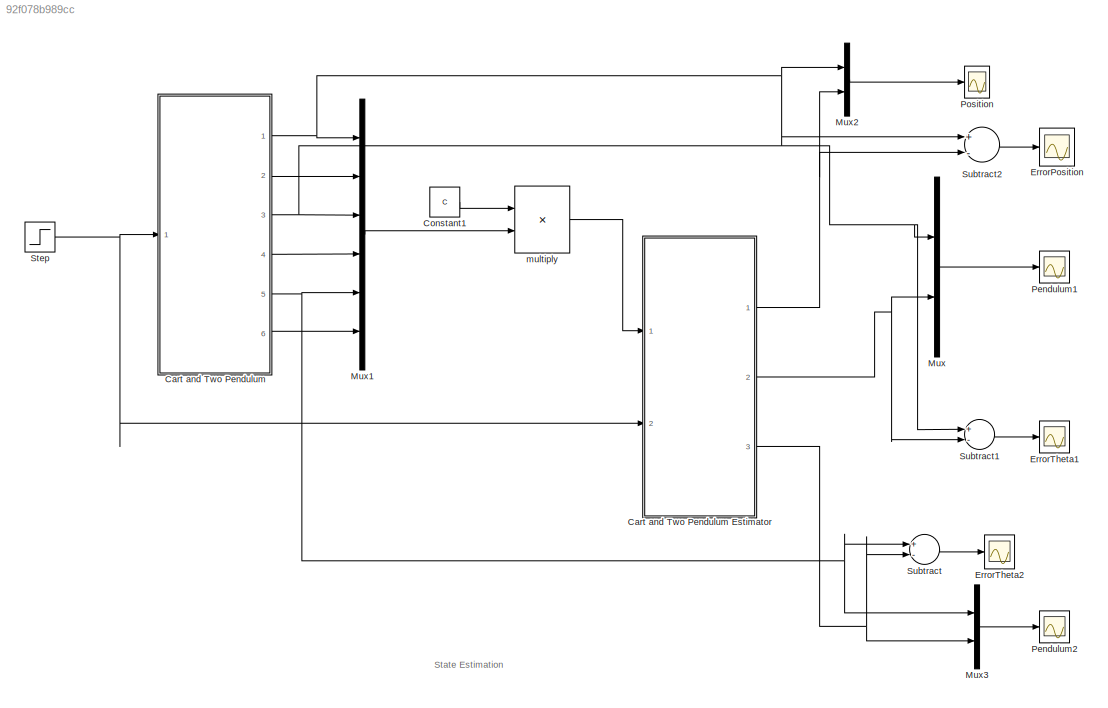
MODEL slx_92f078b989cc
KIND model
CONFIG AbsTol = auto
CONFIG EnableMultiTasking = on
CONFIG FixedStep = auto
CONFIG MaxStep = auto
CONFIG MinStep = auto
CONFIG RelTol = 1e-3
CONFIG SampleTimeConstraint = Unconstrained
CONFIG Solver = VariableStepAuto
CONFIG SolverName = VariableStepAuto
CONFIG StartTime = 0.0
CONFIG StopTime = 20
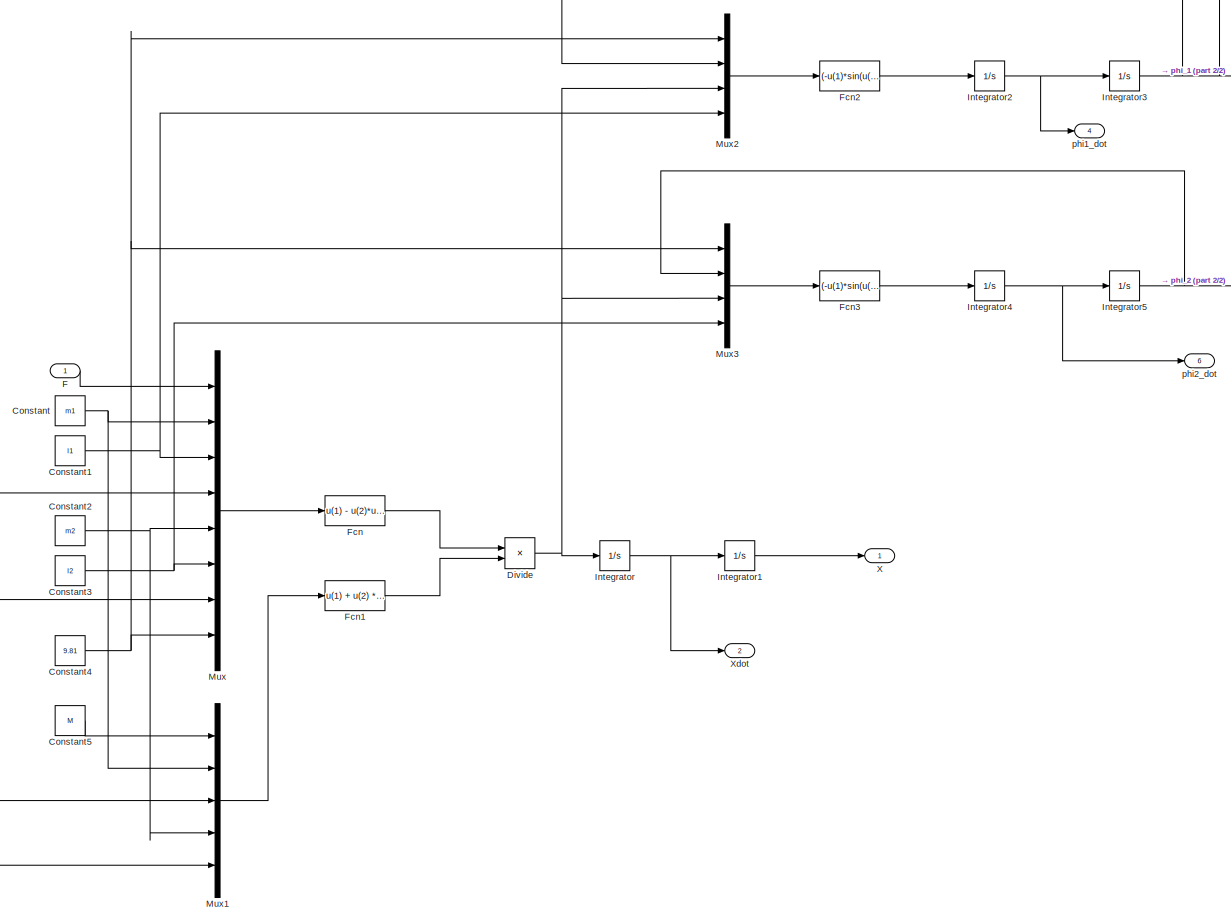
[diagram: Cart and Two Pendulum  - part 1/2, most of the canvas]
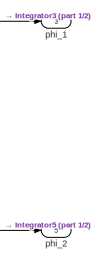
[diagram: Cart and Two Pendulum  - part 2/2, top right region]
BLOCK [SubSystem] Cart and Two Pendulum 
  Ports = [1, 6]
  RequestExecContextInheritance = off
  Variant = off
BLOCK [Constant] Cart and Two Pendulum /Constant
  Value = m1
BLOCK [Constant] Cart and Two Pendulum /Constant1
  Value = l1
BLOCK [Constant] Cart and Two Pendulum /Constant2
  Value = m2
BLOCK [Constant] Cart and Two Pendulum /Constant3
  Value = l2
BLOCK [Constant] Cart and Two Pendulum /Constant4
  Value = 9.81
BLOCK [Constant] Cart and Two Pendulum /Constant5
  Value = M
BLOCK [Product] Cart and Two Pendulum /Divide
  InputSameDT = off
  Inputs = */
  OutDataTypeStr = Inherit: Inherit via internal rule
  Ports = [2, 1]
  RndMeth = Floor
  SaturateOnIntegerOverflow = off
BLOCK [Inport] Cart and Two Pendulum /F
  IconDisplay = Port number
BLOCK [Fcn] Cart and Two Pendulum /Fcn
  Expr = u(1) - u(2)*u(3)*(u(4)^2)*sin(u(4)) - u(5) * u(6) * (u(7)^2)*sin(u(7))-u(2)*u(8)*sin(u(4))*cos(u(4)) - u(5) * u(8) * sin(u(7)) * cos(u(7))
BLOCK [Fcn] Cart and Two Pendulum /Fcn1
  Expr = u(1) + u(2) * (sin(u(3)))^2 + u(4) * (sin(u(5)))^2
BLOCK [Fcn] Cart and Two Pendulum /Fcn2
  Expr = (-u(1)*sin(u(2)) + cos(u(2)) * u(3)) / u(4)
BLOCK [Fcn] Cart and Two Pendulum /Fcn3
  Expr = (-u(1)*sin(u(2)) + cos(u(2)) * u(3)) / u(4)
BLOCK [Integrator] Cart and Two Pendulum /Integrator
  Ports = [1, 1]
BLOCK [Integrator] Cart and Two Pendulum /Integrator1
  InitialCondition = X0(1)
  Ports = [1, 1]
BLOCK [Integrator] Cart and Two Pendulum /Integrator2
  Ports = [1, 1]
BLOCK [Integrator] Cart and Two Pendulum /Integrator3
  InitialCondition = X0(3)
  Ports = [1, 1]
BLOCK [Integrator] Cart and Two Pendulum /Integrator4
  Ports = [1, 1]
BLOCK [Integrator] Cart and Two Pendulum /Integrator5
  InitialCondition = X0(5)
  Ports = [1, 1]
BLOCK [Mux] Cart and Two Pendulum /Mux
  DisplayOption = bar
  Inputs = 8
  Ports = [8, 1]
BLOCK [Mux] Cart and Two Pendulum /Mux1
  DisplayOption = bar
  Inputs = 5
  Ports = [5, 1]
BLOCK [Mux] Cart and Two Pendulum /Mux2
  DisplayOption = bar
  Ports = [4, 1]
BLOCK [Mux] Cart and Two Pendulum /Mux3
  DisplayOption = bar
  Ports = [4, 1]
BLOCK [Outport] Cart and Two Pendulum /X
  IconDisplay = Port number
BLOCK [Outport] Cart and Two Pendulum /Xdot
  IconDisplay = Port number
  Port = 2
BLOCK [Outport] Cart and Two Pendulum /phi1_dot
  IconDisplay = Port number
  Port = 4
BLOCK [Outport] Cart and Two Pendulum /phi2_dot
  IconDisplay = Port number
  Port = 6
BLOCK [Outport] Cart and Two Pendulum /phi_1
  IconDisplay = Port number
  Port = 3
BLOCK [Outport] Cart and Two Pendulum /phi_2
  IconDisplay = Port number
  Port = 5
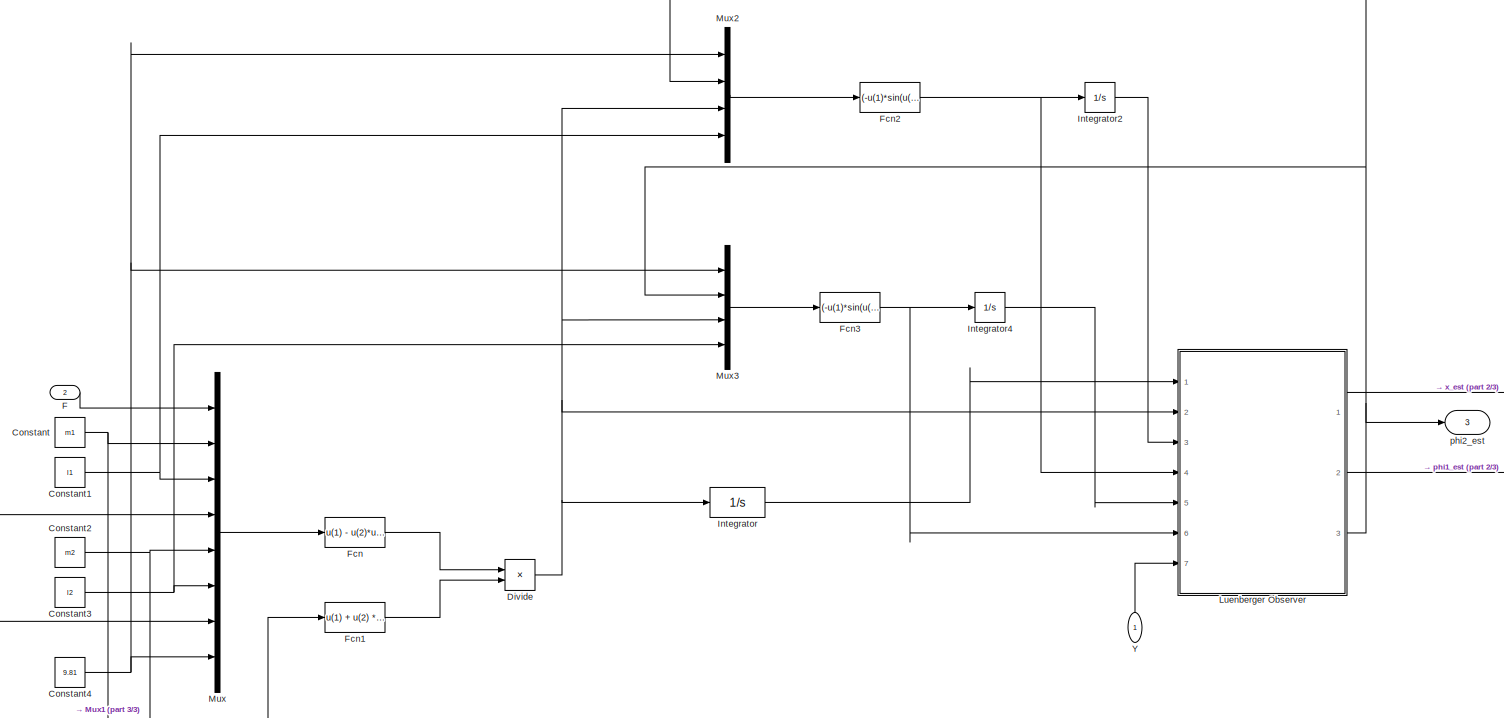
[diagram: Cart and Two Pendulum Estimator - part 1/3, full width, middle band]
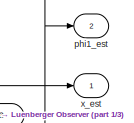
[diagram: Cart and Two Pendulum Estimator - part 2/3, middle right region]
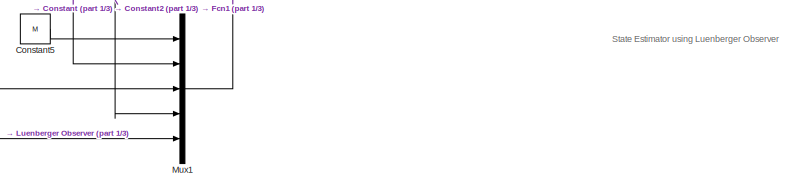
[diagram: Cart and Two Pendulum Estimator - part 3/3, bottom left region]
BLOCK [SubSystem] Cart and Two Pendulum Estimator
  Ports = [2, 3]
  RequestExecContextInheritance = off
  Variant = off
BLOCK [Constant] Cart and Two Pendulum Estimator/Constant
  Value = m1
BLOCK [Constant] Cart and Two Pendulum Estimator/Constant1
  Value = l1
BLOCK [Constant] Cart and Two Pendulum Estimator/Constant2
  Value = m2
BLOCK [Constant] Cart and Two Pendulum Estimator/Constant3
  Value = l2
BLOCK [Constant] Cart and Two Pendulum Estimator/Constant4
  Value = 9.81
BLOCK [Constant] Cart and Two Pendulum Estimator/Constant5
  Value = M
BLOCK [Product] Cart and Two Pendulum Estimator/Divide
  InputSameDT = off
  Inputs = */
  OutDataTypeStr = Inherit: Inherit via internal rule
  Ports = [2, 1]
  RndMeth = Floor
  SaturateOnIntegerOverflow = off
BLOCK [Inport] Cart and Two Pendulum Estimator/F
  IconDisplay = Port number
  Port = 2
BLOCK [Fcn] Cart and Two Pendulum Estimator/Fcn
  Expr = u(1) - u(2)*u(3)*(u(4)^2)*sin(u(4)) - u(5) * u(6) * (u(7)^2)*sin(u(7))-u(2)*u(8)*sin(u(4))*cos(u(4)) - u(5) * u(8) * sin(u(7)) * cos(u(7))
BLOCK [Fcn] Cart and Two Pendulum Estimator/Fcn1
  Expr = u(1) + u(2) * (sin(u(3)))^2 + u(4) * (sin(u(5)))^2
BLOCK [Fcn] Cart and Two Pendulum Estimator/Fcn2
  Expr = (-u(1)*sin(u(2)) + cos(u(2)) * u(3)) / u(4)
BLOCK [Fcn] Cart and Two Pendulum Estimator/Fcn3
  Expr = (-u(1)*sin(u(2)) + cos(u(2)) * u(3)) / u(4)
BLOCK [Integrator] Cart and Two Pendulum Estimator/Integrator
  InitialCondition = X_est(1)
  Ports = [1, 1]
BLOCK [Integrator] Cart and Two Pendulum Estimator/Integrator2
  InitialCondition = X_est(3)
  Ports = [1, 1]
BLOCK [Integrator] Cart and Two Pendulum Estimator/Integrator4
  InitialCondition = X_est(5)
  Ports = [1, 1]
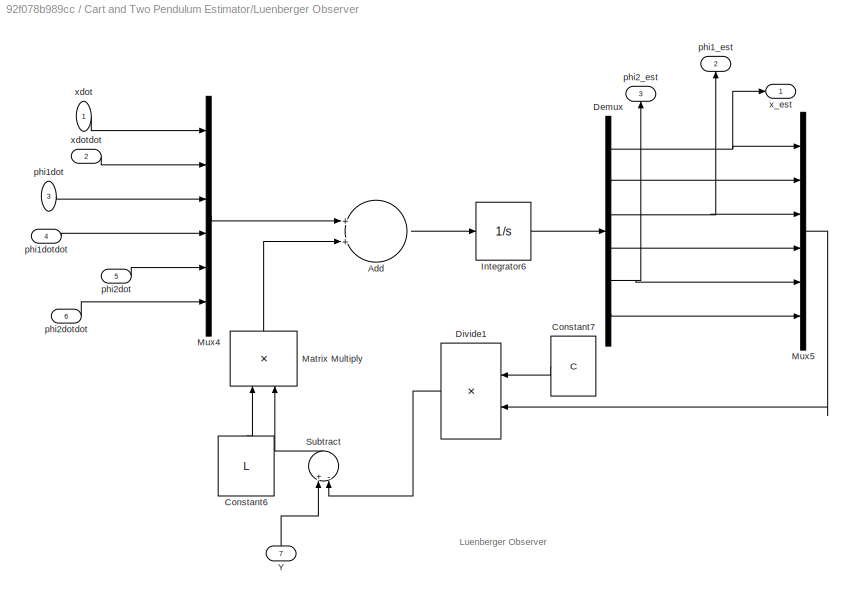
BLOCK [SubSystem] Cart and Two Pendulum Estimator/Luenberger Observer
  Ports = [7, 3]
  RequestExecContextInheritance = off
  Variant = off
BLOCK [Sum] Cart and Two Pendulum Estimator/Luenberger Observer/Add
  InputSameDT = off
  OutDataTypeStr = Inherit: Inherit via internal rule
  Ports = [2, 1]
  SaturateOnIntegerOverflow = off
BLOCK [Constant] Cart and Two Pendulum Estimator/Luenberger Observer/Constant6
  Value = L
BLOCK [Constant] Cart and Two Pendulum Estimator/Luenberger Observer/Constant7
  Value = C
  VectorParams1D = off
BLOCK [Demux] Cart and Two Pendulum Estimator/Luenberger Observer/Demux
  DisplayOption = bar
  Outputs = 6
  Ports = [1, 6]
BLOCK [Product] Cart and Two Pendulum Estimator/Luenberger Observer/Divide1
  InputSameDT = off
  Inputs = **
  Multiplication = Matrix(*)
  OutDataTypeStr = Inherit: Inherit via internal rule
  Ports = [2, 1]
  RndMeth = Floor
  SaturateOnIntegerOverflow = off
BLOCK [Integrator] Cart and Two Pendulum Estimator/Luenberger Observer/Integrator6
  InitialCondition = Xhat0
  Ports = [1, 1]
BLOCK [Product] Cart and Two Pendulum Estimator/Luenberger Observer/Matrix Multiply
  InputSameDT = off
  Multiplication = Matrix(*)
  OutDataTypeStr = Inherit: Inherit via internal rule
  Ports = [2, 1]
  RndMeth = Floor
  SaturateOnIntegerOverflow = off
BLOCK [Mux] Cart and Two Pendulum Estimator/Luenberger Observer/Mux4
  DisplayOption = bar
  Inputs = 6
  Ports = [6, 1]
BLOCK [Mux] Cart and Two Pendulum Estimator/Luenberger Observer/Mux5
  DisplayOption = bar
  Inputs = 6
  Ports = [6, 1]
BLOCK [Sum] Cart and Two Pendulum Estimator/Luenberger Observer/Subtract
  InputSameDT = off
  Inputs = +-
  OutDataTypeStr = Inherit: Inherit via internal rule
  Ports = [2, 1]
  SaturateOnIntegerOverflow = off
BLOCK [Inport] Cart and Two Pendulum Estimator/Luenberger Observer/Y
  IconDisplay = Port number
  Port = 7
BLOCK [Outport] Cart and Two Pendulum Estimator/Luenberger Observer/phi1_est
  IconDisplay = Port number
  Port = 2
BLOCK [Inport] Cart and Two Pendulum Estimator/Luenberger Observer/phi1dot
  IconDisplay = Port number
  Port = 3
BLOCK [Inport] Cart and Two Pendulum Estimator/Luenberger Observer/phi1dotdot
  IconDisplay = Port number
  Port = 4
BLOCK [Outport] Cart and Two Pendulum Estimator/Luenberger Observer/phi2_est
  IconDisplay = Port number
  Port = 3
BLOCK [Inport] Cart and Two Pendulum Estimator/Luenberger Observer/phi2dot
  IconDisplay = Port number
  Port = 5
BLOCK [Inport] Cart and Two Pendulum Estimator/Luenberger Observer/phi2dotdot
  IconDisplay = Port number
  Port = 6
BLOCK [Outport] Cart and Two Pendulum Estimator/Luenberger Observer/x_est
  IconDisplay = Port number
BLOCK [Inport] Cart and Two Pendulum Estimator/Luenberger Observer/xdot 
  IconDisplay = Port number
BLOCK [Inport] Cart and Two Pendulum Estimator/Luenberger Observer/xdotdot
  IconDisplay = Port number
  Port = 2
BLOCK [Mux] Cart and Two Pendulum Estimator/Mux
  DisplayOption = bar
  Inputs = 8
  Ports = [8, 1]
BLOCK [Mux] Cart and Two Pendulum Estimator/Mux1
  DisplayOption = bar
  Inputs = 5
  Ports = [5, 1]
BLOCK [Mux] Cart and Two Pendulum Estimator/Mux2
  DisplayOption = bar
  Ports = [4, 1]
BLOCK [Mux] Cart and Two Pendulum Estimator/Mux3
  DisplayOption = bar
  Ports = [4, 1]
BLOCK [Inport] Cart and Two Pendulum Estimator/Y
  IconDisplay = Port number
BLOCK [Outport] Cart and Two Pendulum Estimator/phi1_est
  IconDisplay = Port number
  Port = 2
BLOCK [Outport] Cart and Two Pendulum Estimator/phi2_est
  IconDisplay = Port number
  Port = 3
BLOCK [Outport] Cart and Two Pendulum Estimator/x_est
  IconDisplay = Port number
BLOCK [Constant] Constant1
  Value = C
  VectorParams1D = off
BLOCK [Scope] ErrorPosition
  NumInputPorts = 1
  Ports = [1]
  ScopeSpecificationString = Simulink.scopes.TimeScopeBlockCfg('CurrentConfiguration', extmgr.ConfigurationSet(extmgr.Configuration('Core','General UI',true,'FigureColor',[1 1 1]),extmgr.Configuration('Core','Source UI',true),extmgr.Configuration('Sources','WiredSimulink',true,'DataLoggingVariableName','ScopeData3'),extmgr.Configuration('Visuals','Time Domain',true,'SerializedDisplays',{struct('MinYLimReal','-0.05525','MaxYLi...<+1574ch>
BLOCK [Scope] ErrorTheta1
  NumInputPorts = 1
  Ports = [1]
  ScopeSpecificationString = Simulink.scopes.TimeScopeBlockCfg('CurrentConfiguration', extmgr.ConfigurationSet(extmgr.Configuration('Core','General UI',true,'FigureColor',[1 1 1]),extmgr.Configuration('Core','Source UI',true),extmgr.Configuration('Sources','WiredSimulink',true,'DataLoggingVariableName','ScopeData2'),extmgr.Configuration('Visuals','Time Domain',true,'SerializedDisplays',{struct('MinYLimReal','-0.07464','MaxYLi...<+1591ch>
BLOCK [Scope] ErrorTheta2
  NumInputPorts = 1
  Ports = [1]
  ScopeSpecificationString = Simulink.scopes.TimeScopeBlockCfg('CurrentConfiguration', extmgr.ConfigurationSet(extmgr.Configuration('Core','General UI',true,'FigureColor',[1 1 1]),extmgr.Configuration('Core','Source UI',true),extmgr.Configuration('Sources','WiredSimulink',true,'DataLoggingVariableName','ScopeData1'),extmgr.Configuration('Visuals','Time Domain',true,'SerializedDisplays',{struct('MinYLimReal','-0.51486','MaxYLi...<+1567ch>
BLOCK [Mux] Mux
  DisplayOption = bar
  Inputs = 2
  Ports = [2, 1]
BLOCK [Mux] Mux1
  DisplayOption = bar
  Inputs = 6
  Ports = [6, 1]
BLOCK [Mux] Mux2
  DisplayOption = bar
  Inputs = 2
  Ports = [2, 1]
BLOCK [Mux] Mux3
  DisplayOption = bar
  Inputs = 2
  Ports = [2, 1]
BLOCK [Scope] Pendulum1
  NumInputPorts = 1
  Ports = [1]
  ScopeSpecificationString = Simulink.scopes.TimeScopeBlockCfg('CurrentConfiguration', extmgr.ConfigurationSet(extmgr.Configuration('Core','General UI',true,'FigureColor',[1 1 1]),extmgr.Configuration('Core','Source UI',true),extmgr.Configuration('Sources','WiredSimulink',true,'DataLoggingVariableName','ScopeData1'),extmgr.Configuration('Visuals','Time Domain',true,'SerializedDisplays',{struct('MinYLimReal','-0.03507','MaxYLi...<+1651ch>
BLOCK [Scope] Pendulum2
  NumInputPorts = 1
  Ports = [1]
  ScopeSpecificationString = Simulink.scopes.TimeScopeBlockCfg('CurrentConfiguration', extmgr.ConfigurationSet(extmgr.Configuration('Core','General UI',true,'FigureColor',[1 1 1]),extmgr.Configuration('Core','Source UI',true),extmgr.Configuration('Sources','WiredSimulink',true,'DataLoggingVariableName','ScopeData1'),extmgr.Configuration('Visuals','Time Domain',true,'SerializedDisplays',{struct('MinYLimReal','-0.05239','MaxYLi...<+1654ch>
BLOCK [Scope] Position
  NumInputPorts = 1
  Ports = [1]
  ScopeSpecificationString = Simulink.scopes.TimeScopeBlockCfg('CurrentConfiguration', extmgr.ConfigurationSet(extmgr.Configuration('Core','General UI',true,'FigureColor',[1 1 1]),extmgr.Configuration('Core','Source UI',true),extmgr.Configuration('Sources','WiredSimulink',true),extmgr.Configuration('Visuals','Time Domain',true,'SerializedDisplays',{struct('MinYLimReal','-18.74862','MaxYLimReal','168.72648','YLabelReal','','Mi...<+1598ch>
BLOCK [Step] Step
  After = 1000
  SampleTime = 0
BLOCK [Sum] Subtract
  InputSameDT = off
  Inputs = +-
  OutDataTypeStr = Inherit: Inherit via internal rule
  Ports = [2, 1]
  SaturateOnIntegerOverflow = off
BLOCK [Sum] Subtract1
  InputSameDT = off
  Inputs = +-
  OutDataTypeStr = Inherit: Inherit via internal rule
  Ports = [2, 1]
  SaturateOnIntegerOverflow = off
BLOCK [Sum] Subtract2
  InputSameDT = off
  Inputs = +-
  OutDataTypeStr = Inherit: Inherit via internal rule
  Ports = [2, 1]
  SaturateOnIntegerOverflow = off
BLOCK [Product] multiply
  InputSameDT = off
  Inputs = **
  Multiplication = Matrix(*)
  OutDataTypeStr = Inherit: Inherit via internal rule
  Ports = [2, 1]
  RndMeth = Floor
  SaturateOnIntegerOverflow = off
ANNOTATION (root): State Estimation
ANNOTATION Cart and Two Pendulum Estimator: State Estimator using Luenberger Observer
ANNOTATION Cart and Two Pendulum Estimator/Luenberger Observer: Luenberger Observer
NET Cart and Two Pendulum /Constant1:1 -> Cart and Two Pendulum /Mux2:4, Cart and Two Pendulum /Mux:3
NET Cart and Two Pendulum /Constant2:1 -> Cart and Two Pendulum /Mux1:4, Cart and Two Pendulum /Mux:5
NET Cart and Two Pendulum /Constant3:1 -> Cart and Two Pendulum /Mux3:4, Cart and Two Pendulum /Mux:6
NET Cart and Two Pendulum /Constant4:1 -> Cart and Two Pendulum /Mux2:1, Cart and Two Pendulum /Mux3:1, Cart and Two Pendulum /Mux:8
LINE Cart and Two Pendulum /Constant5:1 -> Cart and Two Pendulum /Mux1:1
NET Cart and Two Pendulum /Constant:1 -> Cart and Two Pendulum /Mux1:2, Cart and Two Pendulum /Mux:2
NET Cart and Two Pendulum /Divide:1 -> Cart and Two Pendulum /Integrator:1, Cart and Two Pendulum /Mux2:3, Cart and Two Pendulum /Mux3:3
LINE Cart and Two Pendulum /F:1 -> Cart and Two Pendulum /Mux:1
LINE Cart and Two Pendulum /Fcn1:1 -> Cart and Two Pendulum /Divide:2
LINE Cart and Two Pendulum /Fcn2:1 -> Cart and Two Pendulum /Integrator2:1
LINE Cart and Two Pendulum /Fcn3:1 -> Cart and Two Pendulum /Integrator4:1
LINE Cart and Two Pendulum /Fcn:1 -> Cart and Two Pendulum /Divide:1
LINE Cart and Two Pendulum /Integrator1:1 -> Cart and Two Pendulum /X:1
NET Cart and Two Pendulum /Integrator2:1 -> Cart and Two Pendulum /Integrator3:1, Cart and Two Pendulum /phi1_dot:1
NET Cart and Two Pendulum /Integrator3:1 -> Cart and Two Pendulum /Mux1:3, Cart and Two Pendulum /Mux2:2, Cart and Two Pendulum /Mux:4, Cart and Two Pendulum /phi_1:1
NET Cart and Two Pendulum /Integrator4:1 -> Cart and Two Pendulum /Integrator5:1, Cart and Two Pendulum /phi2_dot:1
NET Cart and Two Pendulum /Integrator5:1 -> Cart and Two Pendulum /Mux1:5, Cart and Two Pendulum /Mux3:2, Cart and Two Pendulum /Mux:7, Cart and Two Pendulum /phi_2:1
NET Cart and Two Pendulum /Integrator:1 -> Cart and Two Pendulum /Integrator1:1, Cart and Two Pendulum /Xdot:1
LINE Cart and Two Pendulum /Mux1:1 -> Cart and Two Pendulum /Fcn1:1
LINE Cart and Two Pendulum /Mux2:1 -> Cart and Two Pendulum /Fcn2:1
LINE Cart and Two Pendulum /Mux3:1 -> Cart and Two Pendulum /Fcn3:1
LINE Cart and Two Pendulum /Mux:1 -> Cart and Two Pendulum /Fcn:1
NET Cart and Two Pendulum :1 -> Mux1:1, Mux2:1, Subtract2:1
LINE Cart and Two Pendulum :2 -> Mux1:2
NET Cart and Two Pendulum :3 -> Mux1:3, Mux:1, Subtract1:1
LINE Cart and Two Pendulum :4 -> Mux1:4
NET Cart and Two Pendulum :5 -> Mux1:5, Mux3:1, Subtract:1
LINE Cart and Two Pendulum :6 -> Mux1:6
NET Cart and Two Pendulum Estimator/Constant1:1 -> Cart and Two Pendulum Estimator/Mux2:4, Cart and Two Pendulum Estimator/Mux:3
NET Cart and Two Pendulum Estimator/Constant2:1 -> Cart and Two Pendulum Estimator/Mux1:4, Cart and Two Pendulum Estimator/Mux:5
NET Cart and Two Pendulum Estimator/Constant3:1 -> Cart and Two Pendulum Estimator/Mux3:4, Cart and Two Pendulum Estimator/Mux:6
NET Cart and Two Pendulum Estimator/Constant4:1 -> Cart and Two Pendulum Estimator/Mux2:1, Cart and Two Pendulum Estimator/Mux3:1, Cart and Two Pendulum Estimator/Mux:8
LINE Cart and Two Pendulum Estimator/Constant5:1 -> Cart and Two Pendulum Estimator/Mux1:1
NET Cart and Two Pendulum Estimator/Constant:1 -> Cart and Two Pendulum Estimator/Mux1:2, Cart and Two Pendulum Estimator/Mux:2
NET Cart and Two Pendulum Estimator/Divide:1 -> Cart and Two Pendulum Estimator/Integrator:1, Cart and Two Pendulum Estimator/Luenberger Observer:2, Cart and Two Pendulum Estimator/Mux2:3, Cart and Two Pendulum Estimator/Mux3:3
LINE Cart and Two Pendulum Estimator/F:1 -> Cart and Two Pendulum Estimator/Mux:1
LINE Cart and Two Pendulum Estimator/Fcn1:1 -> Cart and Two Pendulum Estimator/Divide:2
NET Cart and Two Pendulum Estimator/Fcn2:1 -> Cart and Two Pendulum Estimator/Integrator2:1, Cart and Two Pendulum Estimator/Luenberger Observer:4
NET Cart and Two Pendulum Estimator/Fcn3:1 -> Cart and Two Pendulum Estimator/Integrator4:1, Cart and Two Pendulum Estimator/Luenberger Observer:6
LINE Cart and Two Pendulum Estimator/Fcn:1 -> Cart and Two Pendulum Estimator/Divide:1
LINE Cart and Two Pendulum Estimator/Integrator2:1 -> Cart and Two Pendulum Estimator/Luenberger Observer:3
LINE Cart and Two Pendulum Estimator/Integrator4:1 -> Cart and Two Pendulum Estimator/Luenberger Observer:5
LINE Cart and Two Pendulum Estimator/Integrator:1 -> Cart and Two Pendulum Estimator/Luenberger Observer:1
LINE Cart and Two Pendulum Estimator/Luenberger Observer/Add:1 -> Cart and Two Pendulum Estimator/Luenberger Observer/Integrator6:1
LINE Cart and Two Pendulum Estimator/Luenberger Observer/Constant6:1 -> Cart and Two Pendulum Estimator/Luenberger Observer/Matrix Multiply:1
LINE Cart and Two Pendulum Estimator/Luenberger Observer/Constant7:1 -> Cart and Two Pendulum Estimator/Luenberger Observer/Divide1:1
NET Cart and Two Pendulum Estimator/Luenberger Observer/Demux:1 -> Cart and Two Pendulum Estimator/Luenberger Observer/Mux5:1, Cart and Two Pendulum Estimator/Luenberger Observer/x_est:1
LINE Cart and Two Pendulum Estimator/Luenberger Observer/Demux:2 -> Cart and Two Pendulum Estimator/Luenberger Observer/Mux5:2
NET Cart and Two Pendulum Estimator/Luenberger Observer/Demux:3 -> Cart and Two Pendulum Estimator/Luenberger Observer/Mux5:3, Cart and Two Pendulum Estimator/Luenberger Observer/phi1_est:1
LINE Cart and Two Pendulum Estimator/Luenberger Observer/Demux:4 -> Cart and Two Pendulum Estimator/Luenberger Observer/Mux5:4
NET Cart and Two Pendulum Estimator/Luenberger Observer/Demux:5 -> Cart and Two Pendulum Estimator/Luenberger Observer/Mux5:5, Cart and Two Pendulum Estimator/Luenberger Observer/phi2_est:1
LINE Cart and Two Pendulum Estimator/Luenberger Observer/Demux:6 -> Cart and Two Pendulum Estimator/Luenberger Observer/Mux5:6
LINE Cart and Two Pendulum Estimator/Luenberger Observer/Divide1:1 -> Cart and Two Pendulum Estimator/Luenberger Observer/Subtract:2
LINE Cart and Two Pendulum Estimator/Luenberger Observer/Integrator6:1 -> Cart and Two Pendulum Estimator/Luenberger Observer/Demux:1
LINE Cart and Two Pendulum Estimator/Luenberger Observer/Matrix Multiply:1 -> Cart and Two Pendulum Estimator/Luenberger Observer/Add:2
LINE Cart and Two Pendulum Estimator/Luenberger Observer/Mux4:1 -> Cart and Two Pendulum Estimator/Luenberger Observer/Add:1
LINE Cart and Two Pendulum Estimator/Luenberger Observer/Mux5:1 -> Cart and Two Pendulum Estimator/Luenberger Observer/Divide1:2
LINE Cart and Two Pendulum Estimator/Luenberger Observer/Subtract:1 -> Cart and Two Pendulum Estimator/Luenberger Observer/Matrix Multiply:2
LINE Cart and Two Pendulum Estimator/Luenberger Observer/Y:1 -> Cart and Two Pendulum Estimator/Luenberger Observer/Subtract:1
LINE Cart and Two Pendulum Estimator/Luenberger Observer/phi1dot:1 -> Cart and Two Pendulum Estimator/Luenberger Observer/Mux4:3
LINE Cart and Two Pendulum Estimator/Luenberger Observer/phi1dotdot:1 -> Cart and Two Pendulum Estimator/Luenberger Observer/Mux4:4
LINE Cart and Two Pendulum Estimator/Luenberger Observer/phi2dot:1 -> Cart and Two Pendulum Estimator/Luenberger Observer/Mux4:5
LINE Cart and Two Pendulum Estimator/Luenberger Observer/phi2dotdot:1 -> Cart and Two Pendulum Estimator/Luenberger Observer/Mux4:6
LINE Cart and Two Pendulum Estimator/Luenberger Observer/xdot :1 -> Cart and Two Pendulum Estimator/Luenberger Observer/Mux4:1
LINE Cart and Two Pendulum Estimator/Luenberger Observer/xdotdot:1 -> Cart and Two Pendulum Estimator/Luenberger Observer/Mux4:2
LINE Cart and Two Pendulum Estimator/Luenberger Observer:1 -> Cart and Two Pendulum Estimator/x_est:1
NET Cart and Two Pendulum Estimator/Luenberger Observer:2 -> Cart and Two Pendulum Estimator/Mux1:3, Cart and Two Pendulum Estimator/Mux2:2, Cart and Two Pendulum Estimator/Mux:4, Cart and Two Pendulum Estimator/phi1_est:1
NET Cart and Two Pendulum Estimator/Luenberger Observer:3 -> Cart and Two Pendulum Estimator/Mux1:5, Cart and Two Pendulum Estimator/Mux3:2, Cart and Two Pendulum Estimator/Mux:7, Cart and Two Pendulum Estimator/phi2_est:1
LINE Cart and Two Pendulum Estimator/Mux1:1 -> Cart and Two Pendulum Estimator/Fcn1:1
LINE Cart and Two Pendulum Estimator/Mux2:1 -> Cart and Two Pendulum Estimator/Fcn2:1
LINE Cart and Two Pendulum Estimator/Mux3:1 -> Cart and Two Pendulum Estimator/Fcn3:1
LINE Cart and Two Pendulum Estimator/Mux:1 -> Cart and Two Pendulum Estimator/Fcn:1
LINE Cart and Two Pendulum Estimator/Y:1 -> Cart and Two Pendulum Estimator/Luenberger Observer:7
NET Cart and Two Pendulum Estimator:1 -> Mux2:2, Subtract2:2
NET Cart and Two Pendulum Estimator:2 -> Mux:2, Subtract1:2
NET Cart and Two Pendulum Estimator:3 -> Mux3:2, Subtract:2
LINE Constant1:1 -> multiply:1
LINE Mux1:1 -> multiply:2
LINE Mux2:1 -> Position:1
LINE Mux3:1 -> Pendulum2:1
LINE Mux:1 -> Pendulum1:1
NET Step:1 -> Cart and Two Pendulum :1, Cart and Two Pendulum Estimator:2
LINE Subtract1:1 -> ErrorTheta1:1
LINE Subtract2:1 -> ErrorPosition:1
LINE Subtract:1 -> ErrorTheta2:1
LINE multiply:1 -> Cart and Two Pendulum Estimator:1
note: NET lines group one-source signal fan-out (src -> all destinations, sorted); 1:1 wires keep LINE
